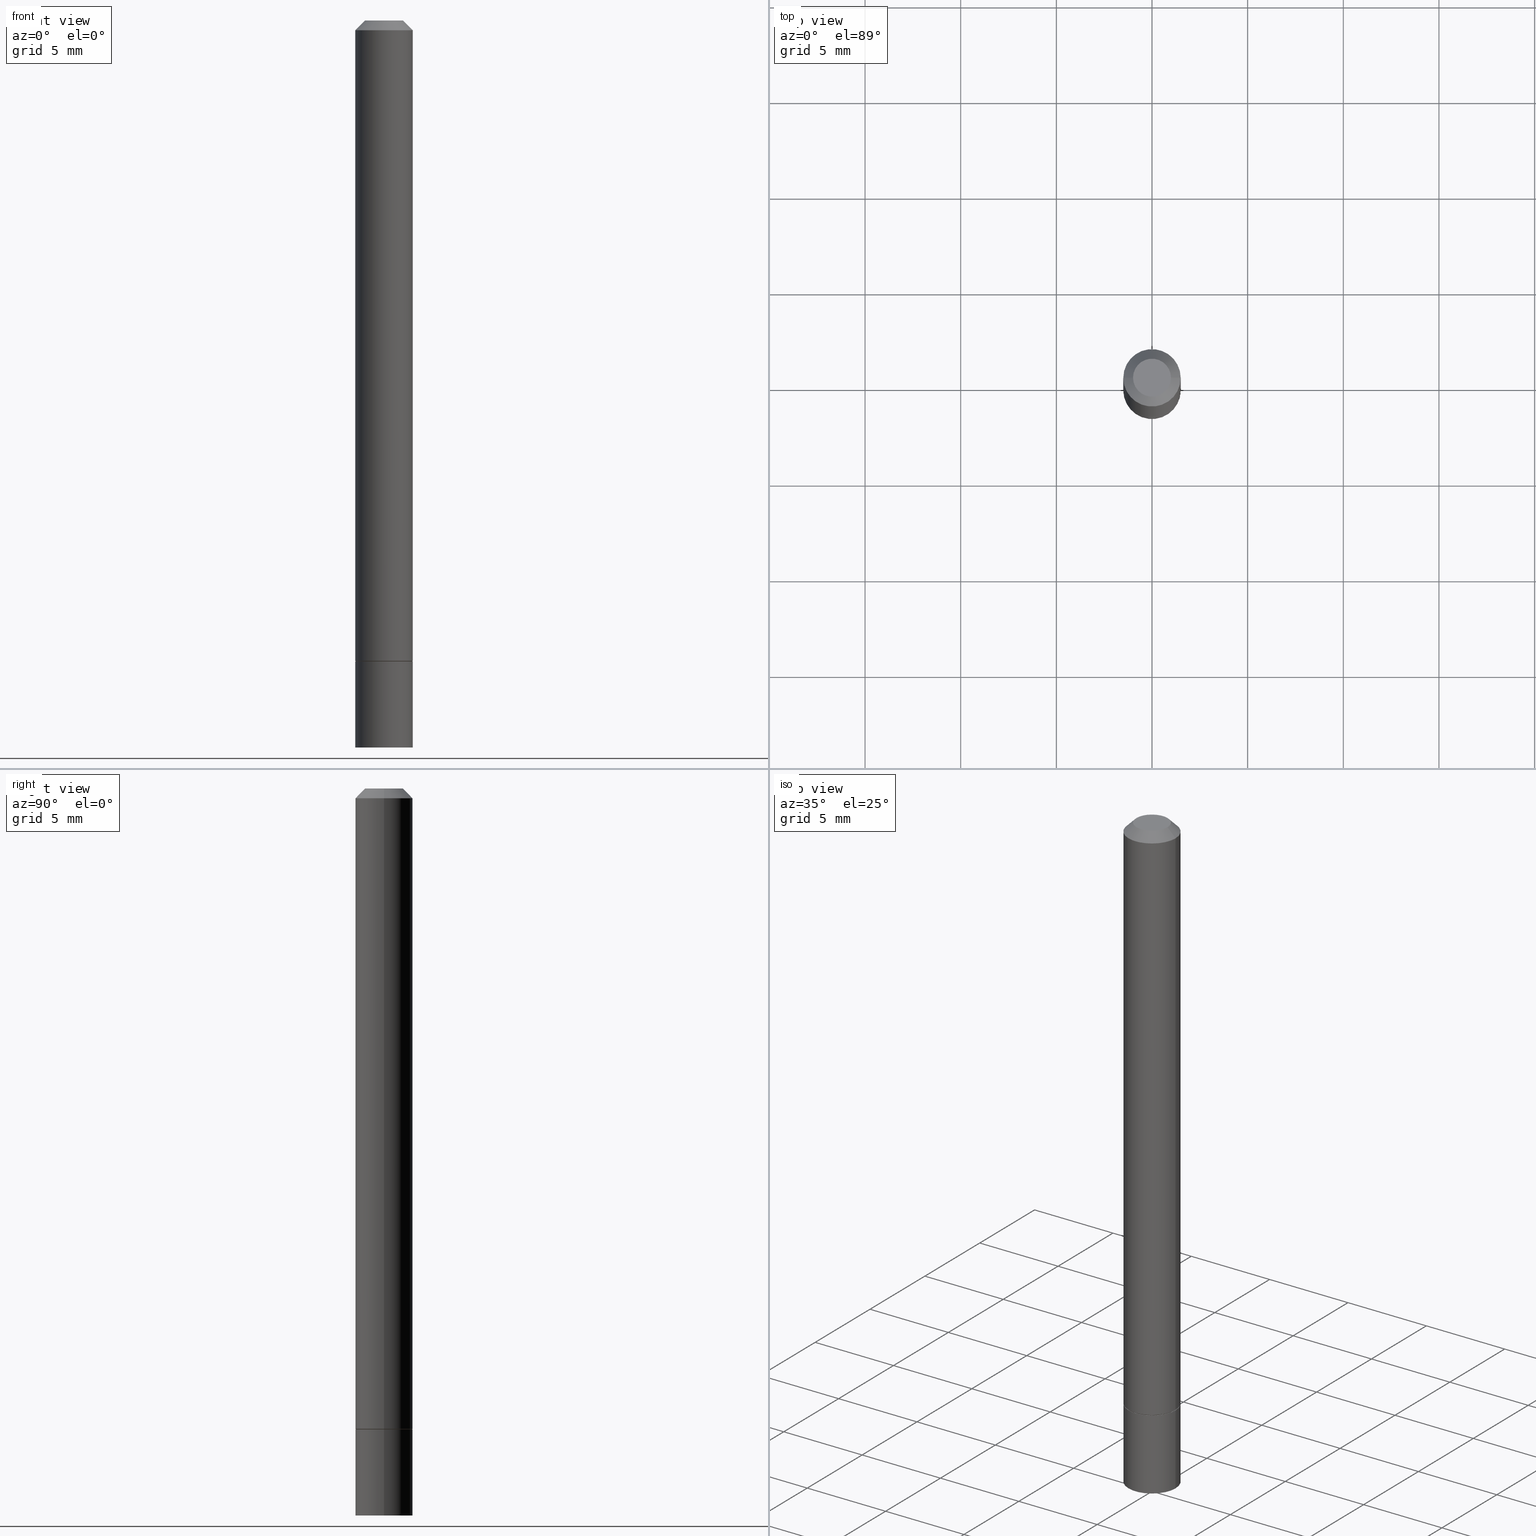
[diagram: canonical four-view strip — front | top / right | iso, engineering-drawing reading convention]
A machine part, canonical four-view strip (front | top / right | iso — engineering-drawing reading convention). The complete STEP part file that produces these views, byte-faithful:
ISO-10303-21;
HEADER;
FILE_DESCRIPTION (( 'STEP AP203' ),
    '1' );
FILE_NAME ('05125.STEP',
    '2024-02-27T12:31:46',
    ( '' ),
    ( '' ),
    'SwSTEP 2.0',
    'SolidWorks 2023',
    '' );
FILE_SCHEMA (( 'CONFIG_CONTROL_DESIGN' ));
ENDSEC;

DATA;
#1 = DIRECTION ( 'NONE',  ( 1.000000000000000000, -6.982962677686266711E-15, 4.873707401586867728E-29 ) ) ;
#2 = MANIFOLD_SOLID_BREP ( 'Body-Move/Copy2[2]', #103 ) ;
#3 = CARTESIAN_POINT ( 'NONE',  ( 4.123439461174106654E-16, 0.05904999999999479415, -1.496100000000000207 ) ) ;
#4 = PRODUCT_RELATED_PRODUCT_CATEGORY ( 'detail', '', ( #58 ) ) ;
#5 = DIRECTION ( 'NONE',  ( -1.000000000000000000, 6.982962677686266711E-15, 0.000000000000000000 ) ) ;
#6 = CARTESIAN_POINT ( 'NONE',  ( -0.05904999999999999832, -1.916050956152782034E-15, -1.317899999999999627 ) ) ;
#7 = PERSON ( 'UNSPECIFIED', 'UNSPECIFIED', 'UNSPECIFIED', ('UNSPECIFIED'), ('UNSPECIFIED'), ('UNSPECIFIED') ) ;
#8 = APPROVAL_ROLE ( '' ) ;
#9 = CIRCLE ( 'NONE', #110, 0.05904999999999999832 ) ;
#10 = AXIS2_PLACEMENT_3D ( 'NONE', #235, #70, #79 ) ;
#11 = AXIS2_PLACEMENT_3D ( 'NONE', #356, #271, #53 ) ;
#12 = LOCAL_TIME ( 7, 31, 46.00000000000000000, #155 ) ;
#13 = SHAPE_DEFINITION_REPRESENTATION ( #33, #132 ) ;
#14 = DIRECTION ( 'NONE',  ( -2.445468806185136597E-29, 3.491481338843145583E-15, 1.000000000000000000 ) ) ;
#15 = EDGE_CURVE ( 'NONE', #228, #86, #349, .T. ) ;
#16 = COORDINATED_UNIVERSAL_TIME_OFFSET ( 5, 0, .BEHIND. ) ;
#17 = ORIENTED_EDGE ( 'NONE', *, *, #66, .T. ) ;
#18 = CIRCLE ( 'NONE', #348, 0.05804999999999999744 ) ;
#19 = DIRECTION ( 'NONE',  ( 1.000000000000000000, -6.982962677686267499E-15, 4.876176775795936353E-29 ) ) ;
#20 = EDGE_CURVE ( 'NONE', #202, #362, #328, .T. ) ;
#21 = CC_DESIGN_DATE_AND_TIME_ASSIGNMENT ( #183, #44, ( #363 ) ) ;
#22 = DIRECTION ( 'NONE',  ( 1.000000000000000000, -6.982962677686266711E-15, 4.873707401586867728E-29 ) ) ;
#23 = EDGE_LOOP ( 'NONE', ( #182, #275, #178, #212 ) ) ;
#24 = AXIS2_PLACEMENT_3D ( 'NONE', #50, #145, #112 ) ;
#25 = CARTESIAN_POINT ( 'NONE',  ( 0.000000000000000000, 0.000000000000000000, 0.000000000000000000 ) ) ;
#26 = AXIS2_PLACEMENT_3D ( 'NONE', #147, #234, #253 ) ;
#27 = ADVANCED_FACE ( 'NONE', ( #311 ), #322, .T. ) ;
#28 = VECTOR ( 'NONE', #151, 39.37007874015748143 ) ;
#29 = ORIENTED_EDGE ( 'NONE', *, *, #331, .F. ) ;
#30 = DIRECTION ( 'NONE',  ( -2.445468806185136597E-29, 3.491481338843145583E-15, 1.000000000000000000 ) ) ;
#31 = UNCERTAINTY_MEASURE_WITH_UNIT (LENGTH_MEASURE( 1.000000000000000082E-05 ), #365, 'distance_accuracy_value', 'NONE');
#32 = ORIENTED_EDGE ( 'NONE', *, *, #63, .F. ) ;
#33 = PRODUCT_DEFINITION_SHAPE ( 'NONE', 'NONE',  #363 ) ;
#34 = DIRECTION ( 'NONE',  ( -2.445468806185136877E-29, 3.491481338843145188E-15, 1.000000000000000000 ) ) ;
#35 = ORIENTED_EDGE ( 'NONE', *, *, #291, .F. ) ;
#36 = CARTESIAN_POINT ( 'NONE',  ( 0.000000000000000000, 0.000000000000000000, 0.000000000000000000 ) ) ;
#37 = LINE ( 'NONE', #242, #246 ) ;
#38 = CARTESIAN_POINT ( 'NONE',  ( 4.123439461174062774E-16, 0.05904999999999539784, -1.318900000000000183 ) ) ;
#39 = FACE_OUTER_BOUND ( 'NONE', #192, .T. ) ;
#40 = DIRECTION ( 'NONE',  ( 1.000000000000000000, -6.982962677686273021E-15, 0.000000000000000000 ) ) ;
#41 = DIRECTION ( 'NONE',  ( 1.000000000000000000, -6.982962677686270655E-15, 0.000000000000000000 ) ) ;
#42 = COORDINATED_UNIVERSAL_TIME_OFFSET ( 5, 0, .BEHIND. ) ;
#43 = ORIENTED_EDGE ( 'NONE', *, *, #56, .T. ) ;
#44 = DATE_TIME_ROLE ( 'creation_date' ) ;
#45 = DATE_AND_TIME ( #102, #12 ) ;
#46 = VECTOR ( 'NONE', #281, 39.37007874015748143 ) ;
#47 = LOCAL_TIME ( 7, 31, 46.00000000000000000, #238 ) ;
#48 = PERSON_AND_ORGANIZATION_ROLE ( 'creator' ) ;
#49 = LINE ( 'NONE', #261, #111 ) ;
#50 = CARTESIAN_POINT ( 'NONE',  ( 2.726846925636483731E-16, 0.03904999999999995974, -1.576849087323267144E-16 ) ) ;
#51 = FACE_OUTER_BOUND ( 'NONE', #200, .T. ) ;
#52 = DIMENSIONAL_EXPONENTS ( 1.000000000000000000, 0.000000000000000000, 0.000000000000000000, 0.000000000000000000, 0.000000000000000000, 0.000000000000000000, 0.000000000000000000 ) ;
#53 = DIRECTION ( 'NONE',  ( 1.000000000000000000, -6.982962677686270655E-15, 0.000000000000000000 ) ) ;
#54 = FACE_OUTER_BOUND ( 'NONE', #169, .T. ) ;
#55 = VERTEX_POINT ( 'NONE', #293 ) ;
#56 = EDGE_CURVE ( 'NONE', #97, #138, #267, .T. ) ;
#57 = AXIS2_PLACEMENT_3D ( 'NONE', #225, #124, #280 ) ;
#58 = PRODUCT ( '05125', '05125', '', ( #262 ) ) ;
#59 = EDGE_CURVE ( 'NONE', #226, #138, #107, .T. ) ;
#60 = ORIENTED_EDGE ( 'NONE', *, *, #78, .T. ) ;
#61 = DIRECTION ( 'NONE',  ( 1.000000000000000000, -6.982962677686266711E-15, 0.000000000000000000 ) ) ;
#62 = CIRCLE ( 'NONE', #264, 0.05904999999999999832 ) ;
#63 = EDGE_CURVE ( 'NONE', #97, #185, #62, .T. ) ;
#64 = DIRECTION ( 'NONE',  ( -2.445468806185136597E-29, 3.491481338843145583E-15, 1.000000000000000000 ) ) ;
#65 = CARTESIAN_POINT ( 'NONE',  ( -0.05904999999999997057, 4.195754854663389506E-16, -2.904631170795520841E-30 ) ) ;
#66 = EDGE_CURVE ( 'NONE', #302, #123, #49, .T. ) ;
#67 = DIRECTION ( 'NONE',  ( -1.000000000000000000, 6.982962677686265922E-15, -4.876176775795935793E-29 ) ) ;
#68 = ORIENTED_EDGE ( 'NONE', *, *, #297, .T. ) ;
#69 = DIRECTION ( 'NONE',  ( 1.000000000000000000, 0.000000000000000000, 0.000000000000000000 ) ) ;
#70 = DIRECTION ( 'NONE',  ( -2.445468806185136597E-29, 3.491481338843145583E-15, 1.000000000000000000 ) ) ;
#71 = CC_DESIGN_SECURITY_CLASSIFICATION ( #163, ( #144 ) ) ;
#72 = CALENDAR_DATE ( 2024, 27, 2 ) ;
#73 = DESIGN_CONTEXT ( 'detailed design', #255, 'design' ) ;
#74 = DIRECTION ( 'NONE',  ( 0.000000000000000000, 0.000000000000000000, 1.000000000000000000 ) ) ;
#75 = PERSON_AND_ORGANIZATION ( #7, #131 ) ;
#76 = CONICAL_SURFACE ( 'NONE', #307, 0.05904999999999994975, 0.7853981633974476129 ) ;
#77 = LOCAL_TIME ( 7, 31, 46.00000000000000000, #42 ) ;
#78 = EDGE_CURVE ( 'NONE', #228, #185, #257, .T. ) ;
#79 = DIRECTION ( 'NONE',  ( 1.000000000000000000, -6.982962677686272233E-15, 0.000000000000000000 ) ) ;
#80 = DIRECTION ( 'NONE',  ( 1.000000000000000000, -6.982962677686272233E-15, 0.000000000000000000 ) ) ;
#81 = AXIS2_PLACEMENT_3D ( 'NONE', #296, #195, #19 ) ;
#82 = EDGE_CURVE ( 'NONE', #86, #97, #37, .T. ) ;
#83 = CYLINDRICAL_SURFACE ( 'NONE', #81, 0.05904999999999997057 ) ;
#84 = ORIENTED_EDGE ( 'NONE', *, *, #59, .F. ) ;
#85 = AXIS2_PLACEMENT_3D ( 'NONE', #193, #30, #244 ) ;
#86 = VERTEX_POINT ( 'NONE', #160 ) ;
#87 = VECTOR ( 'NONE', #34, 39.37007874015748143 ) ;
#88 = DIRECTION ( 'NONE',  ( -2.445468806185136597E-29, 3.491481338843145583E-15, 1.000000000000000000 ) ) ;
#89 = VECTOR ( 'NONE', #116, 39.37007874015748143 ) ;
#90 = ORIENTED_EDGE ( 'NONE', *, *, #249, .T. ) ;
#91 = VERTEX_POINT ( 'NONE', #108 ) ;
#92 = DIRECTION ( 'NONE',  ( -2.445468806185136597E-29, 3.491481338843145583E-15, 1.000000000000000000 ) ) ;
#93 = CARTESIAN_POINT ( 'NONE',  ( 4.890937612370288923E-31, -6.982962677686312563E-17, -0.02000000000000006287 ) ) ;
#94 = CIRCLE ( 'NONE', #205, 0.05904999999999994975 ) ;
#95 = CIRCLE ( 'NONE', #143, 0.03904999999999995974 ) ;
#96 = AXIS2_PLACEMENT_3D ( 'NONE', #347, #74, #69 ) ;
#97 = VERTEX_POINT ( 'NONE', #6 ) ;
#98 = FACE_OUTER_BOUND ( 'NONE', #125, .T. ) ;
#99 = DIRECTION ( 'NONE',  ( -2.445468806185136597E-29, 3.491481338843145583E-15, 1.000000000000000000 ) ) ;
#100 = COORDINATED_UNIVERSAL_TIME_OFFSET ( 5, 0, .BEHIND. ) ;
#101 = CARTESIAN_POINT ( 'NONE',  ( 0.05904999999999994975, -4.749420335452716734E-16, -0.02000000000000006287 ) ) ;
#102 = CALENDAR_DATE ( 2024, 27, 2 ) ;
#103 = CLOSED_SHELL ( 'NONE', ( #27, #304, #289, #122, #219, #259, #312, #137 ) ) ;
#104 = EDGE_CURVE ( 'NONE', #302, #226, #95, .T. ) ;
#105 = PERSON_AND_ORGANIZATION_ROLE ( 'design_supplier' ) ;
#106 = APPLICATION_PROTOCOL_DEFINITION ( 'international standard', 'config_control_design', 1994, #255 ) ;
#107 = LINE ( 'NONE', #154, #175 ) ;
#108 = CARTESIAN_POINT ( 'NONE',  ( -0.05904999999999999832, -4.494684498955387902E-15, -1.318899999999999961 ) ) ;
#109 = DIRECTION ( 'NONE',  ( 1.000000000000000000, -6.982962677686273021E-15, 0.000000000000000000 ) ) ;
#110 = AXIS2_PLACEMENT_3D ( 'NONE', #243, #115, #109 ) ;
#111 = VECTOR ( 'NONE', #283, 39.37007874015748854 ) ;
#112 = DIRECTION ( 'NONE',  ( -1.000000000000000000, 6.982962677686265922E-15, -4.876176775795935793E-29 ) ) ;
#113 = CARTESIAN_POINT ( 'NONE',  ( 3.225328808477576615E-29, -4.604914737800224341E-15, -1.318899999999999961 ) ) ;
#114 = ORIENTED_EDGE ( 'NONE', *, *, #59, .T. ) ;
#115 = DIRECTION ( 'NONE',  ( -2.445468806185136597E-29, 3.491481338843145583E-15, 1.000000000000000000 ) ) ;
#116 = DIRECTION ( 'NONE',  ( -2.445468806185136877E-29, 3.491481338843145188E-15, 1.000000000000000000 ) ) ;
#117 = EDGE_LOOP ( 'NONE', ( #247, #325 ) ) ;
#118 = FACE_OUTER_BOUND ( 'NONE', #172, .T. ) ;
#119 = EDGE_LOOP ( 'NONE', ( #279, #287, #208, #35 ) ) ;
#120 = DIRECTION ( 'NONE',  ( -0.7071067811865469066, 2.468850131082251144E-15, -0.7071067811865479058 ) ) ;
#121 = DIRECTION ( 'NONE',  ( 2.438088387897960049E-29, -3.491481338843145188E-15, -1.000000000000000000 ) ) ;
#122 = ADVANCED_FACE ( 'NONE', ( #39 ), #76, .T. ) ;
#123 = VERTEX_POINT ( 'NONE', #101 ) ;
#124 = DIRECTION ( 'NONE',  ( -2.438088387897960049E-29, 3.491481338843145188E-15, 1.000000000000000000 ) ) ;
#125 = EDGE_LOOP ( 'NONE', ( #314, #17, #299, #84 ) ) ;
#126 = CC_DESIGN_PERSON_AND_ORGANIZATION_ASSIGNMENT ( #75, #48, ( #363 ) ) ;
#127 = APPROVAL_STATUS ( 'not_yet_approved' ) ;
#128 = PERSON_AND_ORGANIZATION ( #7, #131 ) ;
#129 = CIRCLE ( 'NONE', #354, 0.03904999999999995974 ) ;
#130 = AXIS2_PLACEMENT_3D ( 'NONE', #285, #14, #80 ) ;
#131 = ORGANIZATION ( 'UNSPECIFIED', 'UNSPECIFIED', '' ) ;
#132 = ADVANCED_BREP_SHAPE_REPRESENTATION ( '05125', ( #135, #2, #96 ), #232 ) ;
#133 = EDGE_CURVE ( 'NONE', #91, #55, #230, .T. ) ;
#134 = SECURITY_CLASSIFICATION_LEVEL ( 'unclassified' ) ;
#135 = MANIFOLD_SOLID_BREP ( 'Body-Move/Copy2[1]', #148 ) ;
#136 = DIRECTION ( 'NONE',  ( -2.445468806185136877E-29, 3.491481338843145188E-15, 1.000000000000000000 ) ) ;
#137 = ADVANCED_FACE ( 'NONE', ( #334 ), #327, .F. ) ;
#138 = VERTEX_POINT ( 'NONE', #300 ) ;
#139 = CARTESIAN_POINT ( 'NONE',  ( 0.05804999999999999744, -5.010275721239912458E-15, -1.318899999999999961 ) ) ;
#140 = DIRECTION ( 'NONE',  ( -2.445468806185136597E-29, 3.491481338843145583E-15, 1.000000000000000000 ) ) ;
#141 = EDGE_CURVE ( 'NONE', #86, #228, #18, .T. ) ;
#142 = ORIENTED_EDGE ( 'NONE', *, *, #133, .F. ) ;
#143 = AXIS2_PLACEMENT_3D ( 'NONE', #220, #326, #1 ) ;
#144 = PRODUCT_DEFINITION_FORMATION_WITH_SPECIFIED_SOURCE ( 'ANY', '', #58, .NOT_KNOWN. ) ;
#145 = DIRECTION ( 'NONE',  ( 2.438088387897960049E-29, -3.491481338843145188E-15, -1.000000000000000000 ) ) ;
#146 = ORIENTED_EDGE ( 'NONE', *, *, #201, .F. ) ;
#147 = CARTESIAN_POINT ( 'NONE',  ( 4.890937612370288923E-31, -6.982962677686312563E-17, -0.02000000000000006287 ) ) ;
#148 = CLOSED_SHELL ( 'NONE', ( #265, #346, #321, #162 ) ) ;
#149 = ORIENTED_EDGE ( 'NONE', *, *, #249, .F. ) ;
#150 = ORIENTED_EDGE ( 'NONE', *, *, #190, .T. ) ;
#151 = DIRECTION ( 'NONE',  ( -2.445468806185136877E-29, 3.491481338843145188E-15, 1.000000000000000000 ) ) ;
#152 = CARTESIAN_POINT ( 'NONE',  ( 4.890937612370288923E-31, -6.982962677686312563E-17, -0.02000000000000006287 ) ) ;
#153 = CARTESIAN_POINT ( 'NONE',  ( 0.05904999999999997057, -4.123439461173738848E-16, 2.879382386107498819E-30 ) ) ;
#154 = CARTESIAN_POINT ( 'NONE',  ( -0.05904999999999994975, 3.425143193405105373E-16, -0.02000000000000006287 ) ) ;
#155 = COORDINATED_UNIVERSAL_TIME_OFFSET ( 5, 0, .BEHIND. ) ;
#156 = APPROVAL ( #158, 'UNSPECIFIED' ) ;
#157 = CIRCLE ( 'NONE', #11, 0.05905000000000001914 ) ;
#158 = APPROVAL_STATUS ( 'not_yet_approved' ) ;
#159 = ORIENTED_EDGE ( 'NONE', *, *, #359, .T. ) ;
#160 = CARTESIAN_POINT ( 'NONE',  ( -0.05804999999999999744, -4.187146225343263454E-15, -1.318899999999999961 ) ) ;
#161 = FACE_OUTER_BOUND ( 'NONE', #119, .T. ) ;
#162 = ADVANCED_FACE ( 'NONE', ( #51 ), #171, .T. ) ;
#163 = SECURITY_CLASSIFICATION ( '', '', #134 ) ;
#164 = DIRECTION ( 'NONE',  ( -2.445468806185136597E-29, 3.491481338843145583E-15, 1.000000000000000000 ) ) ;
#165 = FACE_OUTER_BOUND ( 'NONE', #305, .T. ) ;
#166 = APPROVAL ( #127, 'UNSPECIFIED' ) ;
#167 = EDGE_CURVE ( 'NONE', #226, #302, #129, .T. ) ;
#168 = CARTESIAN_POINT ( 'NONE',  ( -0.05905000000000002608, -4.494684498955387902E-15, -1.496099999999999985 ) ) ;
#169 = EDGE_LOOP ( 'NONE', ( #90, #250, #337, #366 ) ) ;
#170 = CIRCLE ( 'NONE', #254, 0.05904999999999994975 ) ;
#171 = CYLINDRICAL_SURFACE ( 'NONE', #229, 0.05905000000000000526 ) ;
#172 = EDGE_LOOP ( 'NONE', ( #150, #43, #146, #317 ) ) ;
#173 = CC_DESIGN_PERSON_AND_ORGANIZATION_ASSIGNMENT ( #213, #186, ( #144 ) ) ;
#174 = CARTESIAN_POINT ( 'NONE',  ( -0.05905000000000000526, 4.195754854663391971E-16, -2.904631170795522242E-30 ) ) ;
#175 = VECTOR ( 'NONE', #120, 39.37007874015748854 ) ;
#176 = CARTESIAN_POINT ( 'NONE',  ( 0.03904999999999995974, -3.714222401791248901E-16, -4.268512490100186330E-17 ) ) ;
#177 = CC_DESIGN_APPROVAL ( #156, ( #163 ) ) ;
#178 = ORIENTED_EDGE ( 'NONE', *, *, #190, .F. ) ;
#179 = PLANE ( 'NONE',  #57 ) ;
#180 = EDGE_LOOP ( 'NONE', ( #224, #241 ) ) ;
#181 =( LENGTH_UNIT ( ) NAMED_UNIT ( * ) SI_UNIT ( $, .METRE. ) );
#182 = ORIENTED_EDGE ( 'NONE', *, *, #15, .T. ) ;
#183 = DATE_AND_TIME ( #268, #77 ) ;
#184 = AXIS2_PLACEMENT_3D ( 'NONE', #25, #282, #277 ) ;
#185 = VERTEX_POINT ( 'NONE', #329 ) ;
#186 = PERSON_AND_ORGANIZATION_ROLE ( 'creator' ) ;
#187 = CALENDAR_DATE ( 2024, 27, 2 ) ;
#188 = PERSON_AND_ORGANIZATION ( #7, #131 ) ;
#189 = CONICAL_SURFACE ( 'NONE', #26, 0.05904999999999994975, 0.7853981633974476129 ) ;
#190 = EDGE_CURVE ( 'NONE', #185, #97, #9, .T. ) ;
#191 = PERSON_AND_ORGANIZATION ( #7, #131 ) ;
#192 = EDGE_LOOP ( 'NONE', ( #204, #352, #114, #269 ) ) ;
#193 = CARTESIAN_POINT ( 'NONE',  ( 3.225328808477576615E-29, -4.604914737800224341E-15, -1.318899999999999961 ) ) ;
#194 = DIRECTION ( 'NONE',  ( 1.000000000000000000, -6.982962677686266711E-15, 0.000000000000000000 ) ) ;
#195 = DIRECTION ( 'NONE',  ( -2.445468806185136597E-29, 3.491481338843145583E-15, 1.000000000000000000 ) ) ;
#196 = DIRECTION ( 'NONE',  ( -2.445468806185136597E-29, 3.491481338843145583E-15, 1.000000000000000000 ) ) ;
#197 = ORIENTED_EDGE ( 'NONE', *, *, #133, .T. ) ;
#198 = CC_DESIGN_APPROVAL ( #343, ( #363 ) ) ;
#199 = PLANE ( 'NONE',  #292 ) ;
#200 = EDGE_LOOP ( 'NONE', ( #29, #252, #68, #142 ) ) ;
#201 = EDGE_CURVE ( 'NONE', #123, #138, #94, .T. ) ;
#202 = VERTEX_POINT ( 'NONE', #168 ) ;
#203 = LENGTH_MEASURE_WITH_UNIT ( LENGTH_MEASURE( 0.02539999999999999897 ), #181 );
#204 = ORIENTED_EDGE ( 'NONE', *, *, #66, .F. ) ;
#205 = AXIS2_PLACEMENT_3D ( 'NONE', #245, #140, #194 ) ;
#206 = CARTESIAN_POINT ( 'NONE',  ( 0.05905000000000000526, -4.123439461173741313E-16, 2.879382386107500571E-30 ) ) ;
#207 = APPROVAL_PERSON_ORGANIZATION ( #128, #156, #315 ) ;
#208 = ORIENTED_EDGE ( 'NONE', *, *, #353, .T. ) ;
#209 = DIRECTION ( 'NONE',  ( 1.000000000000000000, -6.982962677686267499E-15, 4.876176775795936353E-29 ) ) ;
#210 = EDGE_LOOP ( 'NONE', ( #159, #197 ) ) ;
#211 = PERSON_AND_ORGANIZATION ( #7, #131 ) ;
#212 = ORIENTED_EDGE ( 'NONE', *, *, #78, .F. ) ;
#213 = PERSON_AND_ORGANIZATION ( #7, #131 ) ;
#214 = CC_DESIGN_PERSON_AND_ORGANIZATION_ASSIGNMENT ( #319, #288, ( #163 ) ) ;
#215 = DATE_AND_TIME ( #350, #47 ) ;
#216 = DATE_AND_TIME ( #72, #318 ) ;
#217 = DIRECTION ( 'NONE',  ( 1.000000000000000000, -6.982962677686273021E-15, 0.000000000000000000 ) ) ;
#218 = AXIS2_PLACEMENT_3D ( 'NONE', #345, #233, #41 ) ;
#219 = ADVANCED_FACE ( 'NONE', ( #161 ), #83, .T. ) ;
#220 = CARTESIAN_POINT ( 'NONE',  ( 1.043851414335219781E-45, -1.490343170380447145E-31, -4.268512490100411279E-17 ) ) ;
#221 = VECTOR ( 'NONE', #136, 39.37007874015748143 ) ;
#222 = CARTESIAN_POINT ( 'NONE',  ( 3.225328808477576615E-29, -4.604914737800224341E-15, -1.318899999999999961 ) ) ;
#223 = ORIENTED_EDGE ( 'NONE', *, *, #82, .F. ) ;
#224 = ORIENTED_EDGE ( 'NONE', *, *, #167, .T. ) ;
#225 = CARTESIAN_POINT ( 'NONE',  ( 3.225328808477576615E-29, -4.604914737800224341E-15, -1.318899999999999961 ) ) ;
#226 = VERTEX_POINT ( 'NONE', #335 ) ;
#227 = CYLINDRICAL_SURFACE ( 'NONE', #324, 0.05904999999999997057 ) ;
#228 = VERTEX_POINT ( 'NONE', #139 ) ;
#229 = AXIS2_PLACEMENT_3D ( 'NONE', #294, #164, #251 ) ;
#230 = CIRCLE ( 'NONE', #85, 0.05904999999999999832 ) ;
#231 = LINE ( 'NONE', #153, #89 ) ;
#232 =( GEOMETRIC_REPRESENTATION_CONTEXT ( 3 ) GLOBAL_UNCERTAINTY_ASSIGNED_CONTEXT ( ( #31 ) ) GLOBAL_UNIT_ASSIGNED_CONTEXT ( ( #365, #336, #303 ) ) REPRESENTATION_CONTEXT ( 'NONE', 'WORKASPACE' ) );
#233 = DIRECTION ( 'NONE',  ( -2.445468806185136597E-29, 3.491481338843145583E-15, 1.000000000000000000 ) ) ;
#234 = DIRECTION ( 'NONE',  ( 2.445468806185136597E-29, -3.491481338843145583E-15, -1.000000000000000000 ) ) ;
#235 = CARTESIAN_POINT ( 'NONE',  ( 3.225328808477576615E-29, -4.604914737800224341E-15, -1.318899999999999961 ) ) ;
#236 = CC_DESIGN_PERSON_AND_ORGANIZATION_ASSIGNMENT ( #211, #105, ( #144 ) ) ;
#237 = APPROVAL_DATE_TIME ( #290, #343 ) ;
#238 = COORDINATED_UNIVERSAL_TIME_OFFSET ( 5, 0, .BEHIND. ) ;
#239 = CIRCLE ( 'NONE', #286, 0.05904999999999999832 ) ;
#240 = DATE_TIME_ROLE ( 'classification_date' ) ;
#241 = ORIENTED_EDGE ( 'NONE', *, *, #104, .T. ) ;
#242 = CARTESIAN_POINT ( 'NONE',  ( -0.05804999999999999744, -4.192444679691485856E-15, -1.318899999999999961 ) ) ;
#243 = CARTESIAN_POINT ( 'NONE',  ( 3.222883339671390452E-29, -4.601423256461380545E-15, -1.317899999999999627 ) ) ;
#244 = DIRECTION ( 'NONE',  ( 1.000000000000000000, -6.982962677686273021E-15, 0.000000000000000000 ) ) ;
#245 = CARTESIAN_POINT ( 'NONE',  ( 4.890937612370288923E-31, -6.982962677686312563E-17, -0.02000000000000006287 ) ) ;
#246 = VECTOR ( 'NONE', #342, 39.37007874015748143 ) ;
#247 = ORIENTED_EDGE ( 'NONE', *, *, #15, .F. ) ;
#248 = DIRECTION ( 'NONE',  ( 1.000000000000000000, -6.982962677686272233E-15, 0.000000000000000000 ) ) ;
#249 = EDGE_CURVE ( 'NONE', #362, #202, #157, .T. ) ;
#250 = ORIENTED_EDGE ( 'NONE', *, *, #331, .T. ) ;
#251 = DIRECTION ( 'NONE',  ( 1.000000000000000000, -6.982962677686267499E-15, 4.876176775795936353E-29 ) ) ;
#252 = ORIENTED_EDGE ( 'NONE', *, *, #20, .T. ) ;
#253 = DIRECTION ( 'NONE',  ( -1.000000000000000000, 6.982962677686266711E-15, 0.000000000000000000 ) ) ;
#254 = AXIS2_PLACEMENT_3D ( 'NONE', #93, #92, #61 ) ;
#255 = APPLICATION_CONTEXT ( 'configuration controlled 3d designs of mechanical parts and assemblies' ) ;
#256 = CARTESIAN_POINT ( 'NONE',  ( 0.05905000000000001914, -5.635949177160603791E-15, -1.496099999999999985 ) ) ;
#257 = LINE ( 'NONE', #340, #46 ) ;
#258 = DIRECTION ( 'NONE',  ( -1.000000000000000000, 6.982962677686265922E-15, -4.876176775795935793E-29 ) ) ;
#259 = ADVANCED_FACE ( 'NONE', ( #165 ), #274, .T. ) ;
#260 = DIRECTION ( 'NONE',  ( 2.445468806185136597E-29, -3.491481338843145583E-15, -1.000000000000000000 ) ) ;
#261 = CARTESIAN_POINT ( 'NONE',  ( 0.05904999999999994975, -4.749420335452716734E-16, -0.02000000000000006287 ) ) ;
#262 = MECHANICAL_CONTEXT ( 'NONE', #316, 'mechanical' ) ;
#263 = APPROVAL_DATE_TIME ( #45, #166 ) ;
#264 = AXIS2_PLACEMENT_3D ( 'NONE', #355, #99, #217 ) ;
#265 = ADVANCED_FACE ( 'NONE', ( #54 ), #273, .T. ) ;
#266 = APPROVAL_ROLE ( '' ) ;
#267 = LINE ( 'NONE', #65, #221 ) ;
#268 = CALENDAR_DATE ( 2024, 27, 2 ) ;
#269 = ORIENTED_EDGE ( 'NONE', *, *, #291, .T. ) ;
#270 = DIRECTION ( 'NONE',  ( -2.445468806185136597E-29, 3.491481338843145583E-15, 1.000000000000000000 ) ) ;
#271 = DIRECTION ( 'NONE',  ( -2.445468806185136597E-29, 3.491481338843145583E-15, 1.000000000000000000 ) ) ;
#272 = CARTESIAN_POINT ( 'NONE',  ( 1.043851414335219781E-45, -1.490343170380447145E-31, -4.268512490100411279E-17 ) ) ;
#273 = CYLINDRICAL_SURFACE ( 'NONE', #184, 0.05905000000000000526 ) ;
#274 = CONICAL_SURFACE ( 'NONE', #357, 0.05804999999999999744, 0.7853981633972775267 ) ;
#275 = ORIENTED_EDGE ( 'NONE', *, *, #82, .T. ) ;
#276 = CC_DESIGN_DATE_AND_TIME_ASSIGNMENT ( #216, #240, ( #163 ) ) ;
#277 = DIRECTION ( 'NONE',  ( 1.000000000000000000, -6.982962677686267499E-15, 4.876176775795936353E-29 ) ) ;
#278 = LINE ( 'NONE', #174, #28 ) ;
#279 = ORIENTED_EDGE ( 'NONE', *, *, #56, .F. ) ;
#280 = DIRECTION ( 'NONE',  ( 1.000000000000000000, -6.982962677686265922E-15, 4.876176775795935793E-29 ) ) ;
#281 = DIRECTION ( 'NONE',  ( 0.7071067811864267805, -2.468850131080992517E-15, 0.7071067811866682540 ) ) ;
#282 = DIRECTION ( 'NONE',  ( -2.445468806185136597E-29, 3.491481338843145583E-15, 1.000000000000000000 ) ) ;
#283 = DIRECTION ( 'NONE',  ( 0.7071067811865469066, -7.319954787623252890E-15, -0.7071067811865479058 ) ) ;
#284 = FACE_OUTER_BOUND ( 'NONE', #117, .T. ) ;
#285 = CARTESIAN_POINT ( 'NONE',  ( 3.225328808477576615E-29, -4.604914737800224341E-15, -1.318899999999999961 ) ) ;
#286 = AXIS2_PLACEMENT_3D ( 'NONE', #341, #88, #40 ) ;
#287 = ORIENTED_EDGE ( 'NONE', *, *, #63, .T. ) ;
#288 = PERSON_AND_ORGANIZATION_ROLE ( 'classification_officer' ) ;
#289 = ADVANCED_FACE ( 'NONE', ( #98 ), #189, .T. ) ;
#290 = DATE_AND_TIME ( #187, #358 ) ;
#291 = EDGE_CURVE ( 'NONE', #138, #123, #170, .T. ) ;
#292 = AXIS2_PLACEMENT_3D ( 'NONE', #3, #121, #67 ) ;
#293 = CARTESIAN_POINT ( 'NONE',  ( 0.05904999999999999832, -5.017258683917598472E-15, -1.318899999999999961 ) ) ;
#294 = CARTESIAN_POINT ( 'NONE',  ( 0.000000000000000000, 0.000000000000000000, 0.000000000000000000 ) ) ;
#295 = AXIS2_PLACEMENT_3D ( 'NONE', #38, #338, #258 ) ;
#296 = CARTESIAN_POINT ( 'NONE',  ( 0.000000000000000000, 0.000000000000000000, 0.000000000000000000 ) ) ;
#297 = EDGE_CURVE ( 'NONE', #362, #55, #313, .T. ) ;
#298 = DIRECTION ( 'NONE',  ( 1.000000000000000000, -6.982962677686272233E-15, 0.000000000000000000 ) ) ;
#299 = ORIENTED_EDGE ( 'NONE', *, *, #201, .T. ) ;
#300 = CARTESIAN_POINT ( 'NONE',  ( -0.05904999999999994975, 3.425143193405105373E-16, -0.02000000000000006287 ) ) ;
#301 = APPROVAL_PERSON_ORGANIZATION ( #191, #343, #8 ) ;
#302 = VERTEX_POINT ( 'NONE', #176 ) ;
#303 =( NAMED_UNIT ( * ) SI_UNIT ( $, .STERADIAN. ) SOLID_ANGLE_UNIT ( ) );
#304 = ADVANCED_FACE ( 'NONE', ( #118 ), #227, .T. ) ;
#305 = EDGE_LOOP ( 'NONE', ( #223, #333, #60, #32 ) ) ;
#306 = APPLICATION_PROTOCOL_DEFINITION ( 'international standard', 'config_control_design', 1994, #316 ) ;
#307 = AXIS2_PLACEMENT_3D ( 'NONE', #152, #260, #5 ) ;
#308 = ORIENTED_EDGE ( 'NONE', *, *, #20, .F. ) ;
#309 = CC_DESIGN_APPROVAL ( #166, ( #144 ) ) ;
#310 = FACE_OUTER_BOUND ( 'NONE', #210, .T. ) ;
#311 = FACE_OUTER_BOUND ( 'NONE', #23, .T. ) ;
#312 = ADVANCED_FACE ( 'NONE', ( #284 ), #179, .F. ) ;
#313 = LINE ( 'NONE', #206, #87 ) ;
#314 = ORIENTED_EDGE ( 'NONE', *, *, #104, .F. ) ;
#315 = APPROVAL_ROLE ( '' ) ;
#316 = APPLICATION_CONTEXT ( 'configuration controlled 3d designs of mechanical parts and assemblies' ) ;
#317 = ORIENTED_EDGE ( 'NONE', *, *, #353, .F. ) ;
#318 = LOCAL_TIME ( 7, 31, 46.00000000000000000, #100 ) ;
#319 = PERSON_AND_ORGANIZATION ( #7, #131 ) ;
#320 = APPROVAL_STATUS ( 'not_yet_approved' ) ;
#321 = ADVANCED_FACE ( 'NONE', ( #310 ), #339, .F. ) ;
#322 = CONICAL_SURFACE ( 'NONE', #10, 0.05804999999999999744, 0.7853981633972775267 ) ;
#323 = APPROVAL_DATE_TIME ( #215, #156 ) ;
#324 = AXIS2_PLACEMENT_3D ( 'NONE', #36, #64, #209 ) ;
#325 = ORIENTED_EDGE ( 'NONE', *, *, #141, .F. ) ;
#326 = DIRECTION ( 'NONE',  ( -2.445468806185136597E-29, 3.491481338843145583E-15, 1.000000000000000000 ) ) ;
#327 = PLANE ( 'NONE',  #24 ) ;
#328 = CIRCLE ( 'NONE', #218, 0.05905000000000001914 ) ;
#329 = CARTESIAN_POINT ( 'NONE',  ( 0.05904999999999999832, -5.013767202578754676E-15, -1.317899999999999627 ) ) ;
#330 = APPROVAL_PERSON_ORGANIZATION ( #188, #166, #266 ) ;
#331 = EDGE_CURVE ( 'NONE', #202, #91, #278, .T. ) ;
#332 = DIRECTION ( 'NONE',  ( -2.445468806185136597E-29, 3.491481338843145583E-15, 1.000000000000000000 ) ) ;
#333 = ORIENTED_EDGE ( 'NONE', *, *, #141, .T. ) ;
#334 = FACE_OUTER_BOUND ( 'NONE', #180, .T. ) ;
#335 = CARTESIAN_POINT ( 'NONE',  ( -0.03904999999999995974, 3.075995059520794305E-16, -4.268512490100614657E-17 ) ) ;
#336 =( NAMED_UNIT ( * ) PLANE_ANGLE_UNIT ( ) SI_UNIT ( $, .RADIAN. ) );
#337 = ORIENTED_EDGE ( 'NONE', *, *, #359, .F. ) ;
#338 = DIRECTION ( 'NONE',  ( 2.438088387897960049E-29, -3.491481338843145188E-15, -1.000000000000000000 ) ) ;
#339 = PLANE ( 'NONE',  #295 ) ;
#340 = CARTESIAN_POINT ( 'NONE',  ( 0.05804999999999999744, -5.010275721239912458E-15, -1.318899999999999961 ) ) ;
#341 = CARTESIAN_POINT ( 'NONE',  ( 3.225328808477576615E-29, -4.604914737800224341E-15, -1.318899999999999961 ) ) ;
#342 = DIRECTION ( 'NONE',  ( -0.7071067811864267805, 7.493145998869918709E-15, 0.7071067811866682540 ) ) ;
#343 = APPROVAL ( #320, 'UNSPECIFIED' ) ;
#344 = PERSON_AND_ORGANIZATION ( #7, #131 ) ;
#345 = CARTESIAN_POINT ( 'NONE',  ( 3.658665880933582389E-29, -5.223605231043229660E-15, -1.496099999999999985 ) ) ;
#346 = ADVANCED_FACE ( 'NONE', ( #364 ), #199, .T. ) ;
#347 = CARTESIAN_POINT ( 'NONE',  ( 0.000000000000000000, 0.000000000000000000, 0.000000000000000000 ) ) ;
#348 = AXIS2_PLACEMENT_3D ( 'NONE', #113, #196, #248 ) ;
#349 = CIRCLE ( 'NONE', #130, 0.05804999999999999744 ) ;
#350 = CALENDAR_DATE ( 2024, 27, 2 ) ;
#351 = PERSON_AND_ORGANIZATION_ROLE ( 'design_owner' ) ;
#352 = ORIENTED_EDGE ( 'NONE', *, *, #167, .F. ) ;
#353 = EDGE_CURVE ( 'NONE', #185, #123, #231, .T. ) ;
#354 = AXIS2_PLACEMENT_3D ( 'NONE', #272, #270, #22 ) ;
#355 = CARTESIAN_POINT ( 'NONE',  ( 3.222883339671390452E-29, -4.601423256461380545E-15, -1.317899999999999627 ) ) ;
#356 = CARTESIAN_POINT ( 'NONE',  ( 3.658665880933582389E-29, -5.223605231043229660E-15, -1.496099999999999985 ) ) ;
#357 = AXIS2_PLACEMENT_3D ( 'NONE', #222, #332, #298 ) ;
#358 = LOCAL_TIME ( 7, 31, 46.00000000000000000, #16 ) ;
#359 = EDGE_CURVE ( 'NONE', #55, #91, #239, .T. ) ;
#360 = CC_DESIGN_PERSON_AND_ORGANIZATION_ASSIGNMENT ( #344, #351, ( #58 ) ) ;
#361 = EDGE_LOOP ( 'NONE', ( #149, #308 ) ) ;
#362 = VERTEX_POINT ( 'NONE', #256 ) ;
#363 = PRODUCT_DEFINITION ( 'UNKNOWN', '', #144, #73 ) ;
#364 = FACE_OUTER_BOUND ( 'NONE', #361, .T. ) ;
#365 =( CONVERSION_BASED_UNIT ( 'INCH', #203 ) LENGTH_UNIT ( ) NAMED_UNIT ( #52 ) );
#366 = ORIENTED_EDGE ( 'NONE', *, *, #297, .F. ) ;
ENDSEC;
END-ISO-10303-21;
